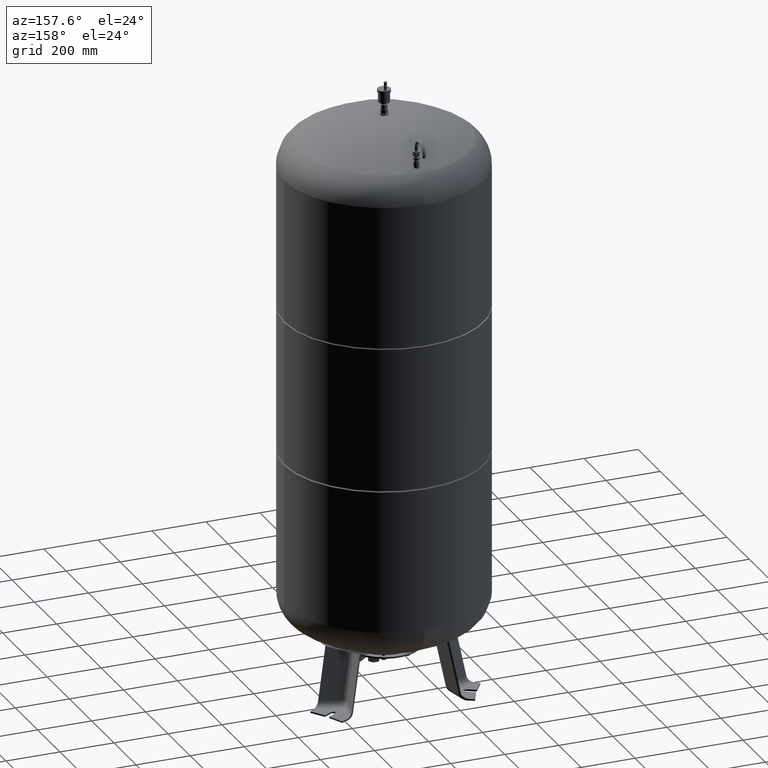
[diagram: clean part render]
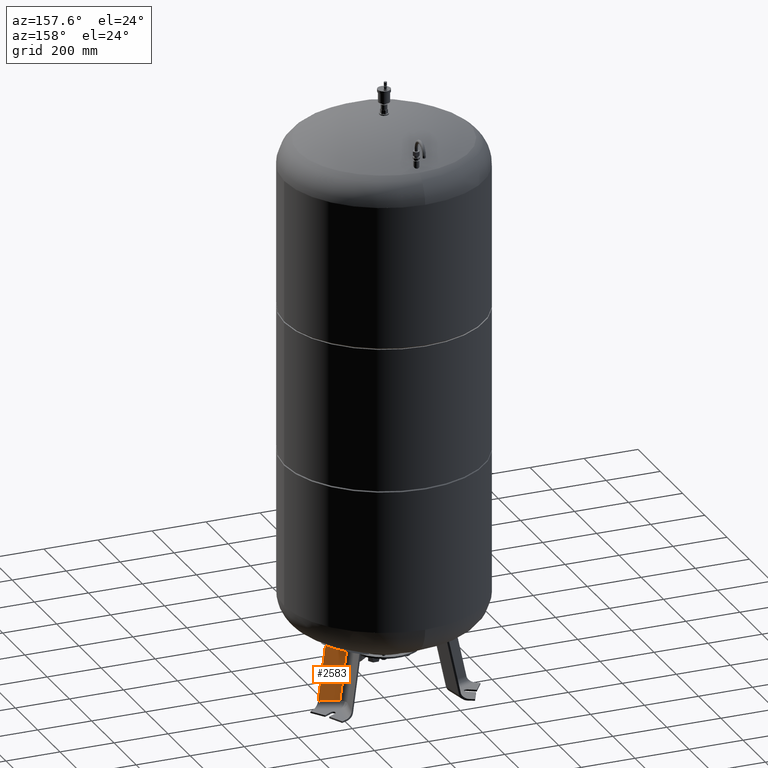
[diagram: same view with one face highlighted and labeled with its STEP entity id]
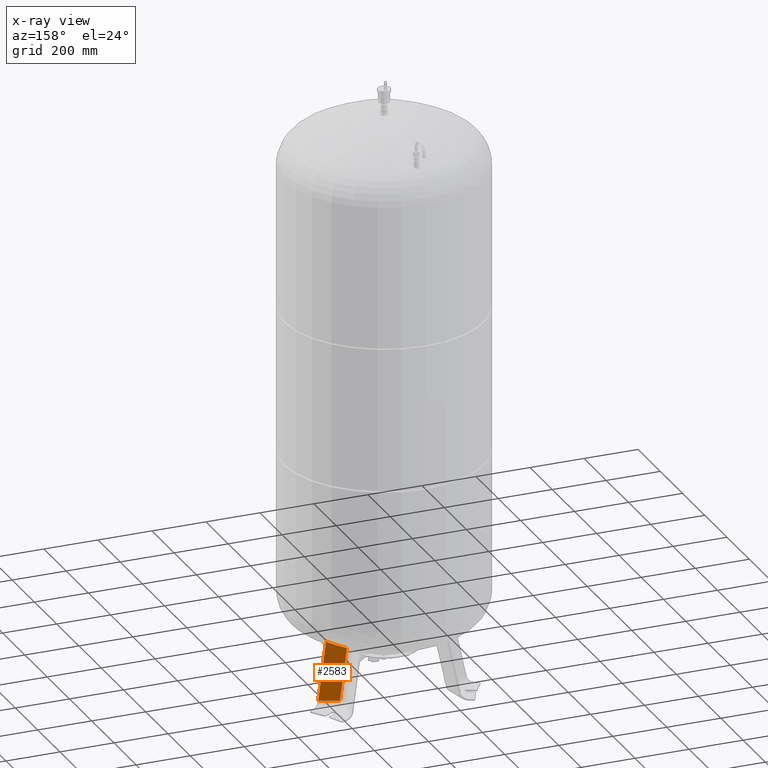
[diagram: x-ray of the same camera — body ghosted, the highlighted face saturated]
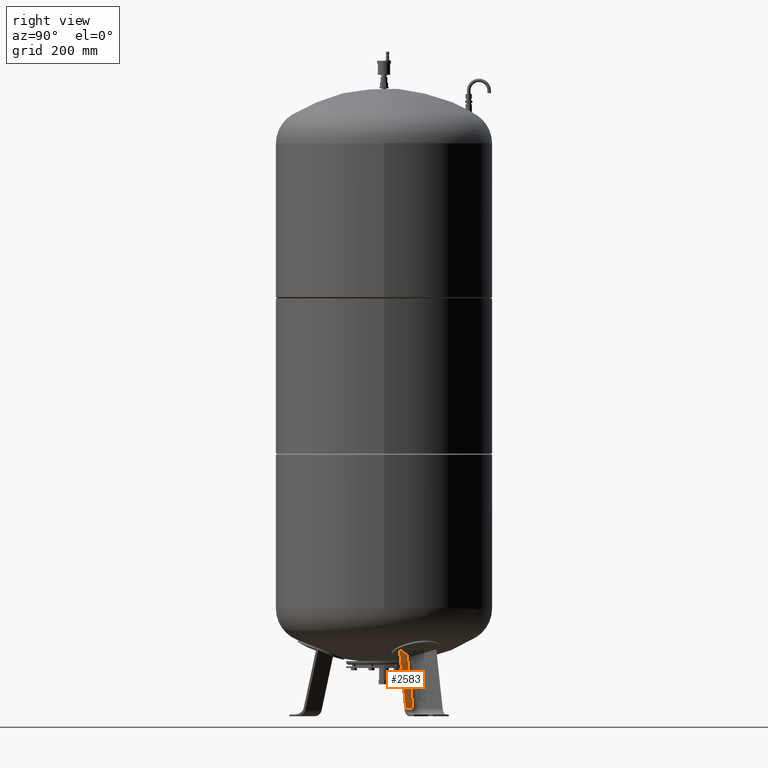
[diagram: same view with one face highlighted and labeled with its STEP entity id]
A machine part, auxiliary view. The second image highlights one B-rep face of the part: STEP entity #2583.
The next image is the same camera in x-ray: the body ghosted, the highlighted face saturated — about 0% of this face is hidden behind the body in this view.
A second angle (right view) of the same face is appended — the face is thin or edge-on in the first view.
In plain terms, the highlighted planar face has unit normal (0.3243, 0.9325, 0.1588).
Its self-contained STEP definition (entity closure, byte-faithful):
#2213=CARTESIAN_POINT('',(203.897970942220720,99.087779953756780,27.029948423057292));
#2214=VERTEX_POINT('',#2213);
#2286=CARTESIAN_POINT('',(170.344666907117190,79.715770836888353,209.306223167677190));
#2287=VERTEX_POINT('',#2286);
#2368=CARTESIAN_POINT('',(236.757770730876760,52.586239383479921,233.000000000000030));
#2369=VERTEX_POINT('',#2368);
#2377=CARTESIAN_POINT('',(170.344666907117190,79.715770836888353,209.306223167677190));
#2378=CARTESIAN_POINT('',(172.361756306383140,78.911315232764395,209.911227339780880));
#2379=CARTESIAN_POINT('',(174.379511752188250,78.104589287404181,210.528203562929860));
#2380=CARTESIAN_POINT('',(183.208078527320790,74.566467202668491,213.276729921399890));
#2381=CARTESIAN_POINT('',(190.025567566105390,71.812748058212591,215.525731482895940));
#2382=CARTESIAN_POINT('',(210.166153264246620,63.620194625736048,222.506751583386570));
#2383=CARTESIAN_POINT('',(223.492076462663390,58.125701223915712,227.559845947390160));
#2384=CARTESIAN_POINT('',(236.757770730876760,52.586239383479921,233.000000000000030));
#2385=B_SPLINE_CURVE_WITH_KNOTS('',3,(#2377,#2378,#2379,#2380,#2381,#2382,#2383,#2384),.UNSPECIFIED.,.F.,.U.,(4,2,2,4),(5.937335443723129,6.588195328792665,8.784260438390220,13.073486937020286),.UNSPECIFIED.);
#2386=EDGE_CURVE('',#2287,#2369,#2385,.T.);
#2541=CARTESIAN_POINT('',(170.344666907117190,79.715770836888353,209.306223167677190));
#2542=DIRECTION('',(0.180056805991956,0.103955845408880,-0.978147600733805));
#2543=VECTOR('',#2542,186.348435152196260);
#2544=LINE('',#2541,#2543);
#2545=EDGE_CURVE('',#2287,#2214,#2544,.T.);
#2560=CARTESIAN_POINT('',(201.200799330712950,116.163335654754970,-67.735293817669458));
#2561=DIRECTION('',(0.324282864533177,0.932535537409927,0.158802063077708));
#2562=DIRECTION('',(-0.180056805991956,-0.103955845408880,0.978147600733806));
#2563=AXIS2_PLACEMENT_3D('',#2560,#2561,#2562);
#2564=PLANE('',#2563);
#2565=CARTESIAN_POINT('',(274.672610566010690,74.476382368576026,27.029948423057292));
#2566=VERTEX_POINT('',#2565);
#2567=CARTESIAN_POINT('',(274.672610566010690,74.476382368576026,27.029948423057292));
#2568=DIRECTION('',(-0.180056805991956,-0.103955845408880,0.978147600733805));
#2569=VECTOR('',#2568,210.571545053552460);
#2570=LINE('',#2567,#2569);
#2571=EDGE_CURVE('',#2566,#2369,#2570,.T.);
#2572=ORIENTED_EDGE('',*,*,#2571,.F.);
#2573=CARTESIAN_POINT('',(203.897970942220720,99.087779953756780,27.029948423057292));
#2574=DIRECTION('',(0.944521094592692,-0.328450760190053,0.0));
#2575=VECTOR('',#2574,74.931772333057637);
#2576=LINE('',#2573,#2575);
#2577=EDGE_CURVE('',#2214,#2566,#2576,.T.);
#2578=ORIENTED_EDGE('',*,*,#2577,.F.);
#2579=ORIENTED_EDGE('',*,*,#2545,.F.);
#2580=ORIENTED_EDGE('',*,*,#2386,.T.);
#2581=EDGE_LOOP('',(#2572,#2578,#2579,#2580));
#2582=FACE_OUTER_BOUND('',#2581,.T.);
#2583=ADVANCED_FACE('',(#2582),#2564,.T.);